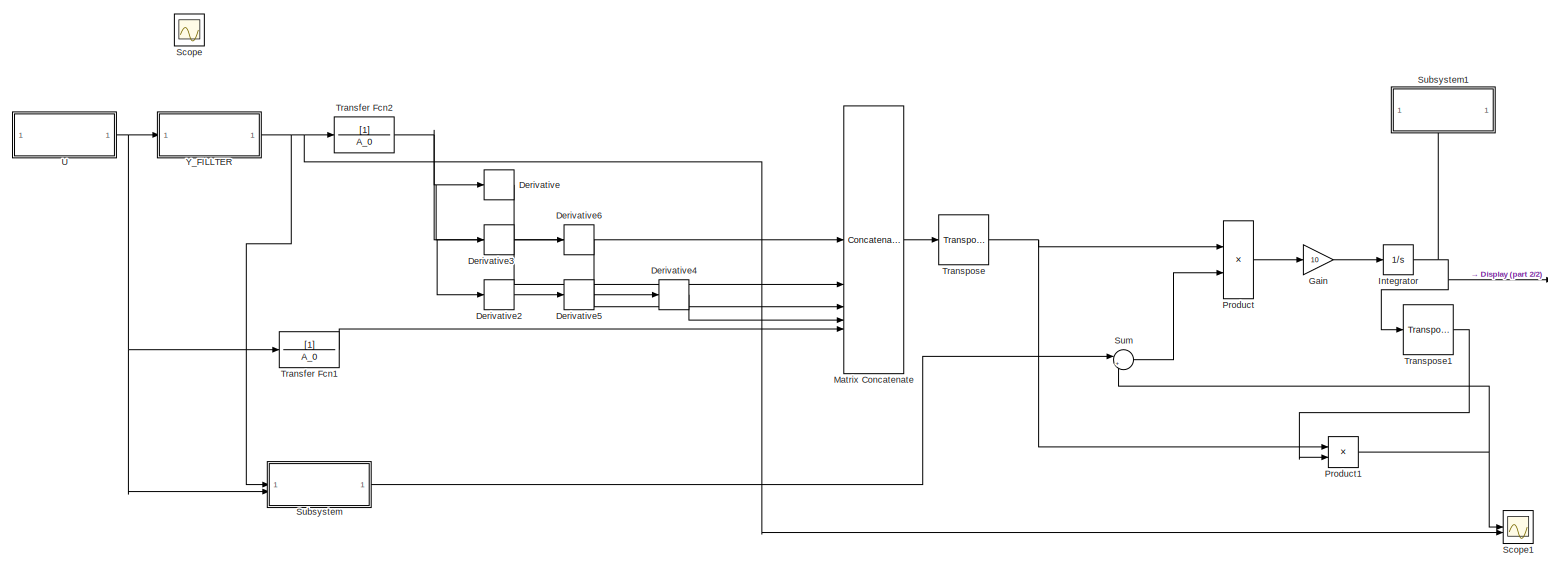
[diagram: root canvas - part 1/2, most of the canvas]
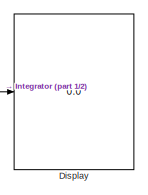
[diagram: root canvas - part 2/2, middle right region]
MODEL slx_9ffe2521eaad
KIND model
CONFIG AbsTol = auto
CONFIG EnableMultiTasking = off
CONFIG FixedStep = 0.1
CONFIG MaxStep = auto
CONFIG MinStep = auto
CONFIG RelTol = 1e-3
CONFIG SampleTimeConstraint = Unconstrained
CONFIG SolverName = FixedStepAuto
CONFIG StartTime = 0.0
CONFIG StopTime = 70000
BLOCK [Derivative] Derivative
BLOCK [Derivative] Derivative2
BLOCK [Derivative] Derivative3
BLOCK [Derivative] Derivative4
BLOCK [Derivative] Derivative5
BLOCK [Derivative] Derivative6
BLOCK [Display] Display
  Decimation = 1
BLOCK [Gain] Gain
  Gain = 10
BLOCK [Integrator] Integrator
BLOCK [Concatenate] Matrix Concatenate
  Mode = Multidimensional array
  NumInputs = 5
BLOCK [Product] Product
BLOCK [Product] Product1
  Multiplication = Matrix(*)
BLOCK [Scope] Scope
  Floating = off
  IOType = viewer
  NumInputPorts = 1
  ScopeSpecificationString = Simulink.scopes.TimeScopeBlockCfg('CurrentConfiguration', extmgr.ConfigurationSet(extmgr.Configuration('Core','General UI',true),extmgr.Configuration('Core','Source UI',true),extmgr.Configuration('Sources','WiredSimulink',true),extmgr.Configuration('Visuals','Time Domain',true,'SerializedDisplays',{struct('MinYLimReal','-3.20132','MaxYLimReal','3.20132','YLabelReal','','MinYLimMag','0.00000','MaxY...<+1324ch>
BLOCK [Scope] Scope1
  Floating = off
  NumInputPorts = 2
  ScopeSpecificationString = Simulink.scopes.TimeScopeBlockCfg('CurrentConfiguration', extmgr.ConfigurationSet(extmgr.Configuration('Core','General UI',true),extmgr.Configuration('Core','Source UI',true),extmgr.Configuration('Sources','WiredSimulink',true,'DataLoggingVariableName','ScopeData2'),extmgr.Configuration('Visuals','Time Domain',true,'SerializedDisplays',{struct('MinYLimReal','-0.02475','MaxYLimReal','0.09519','YLab...<+1449ch>
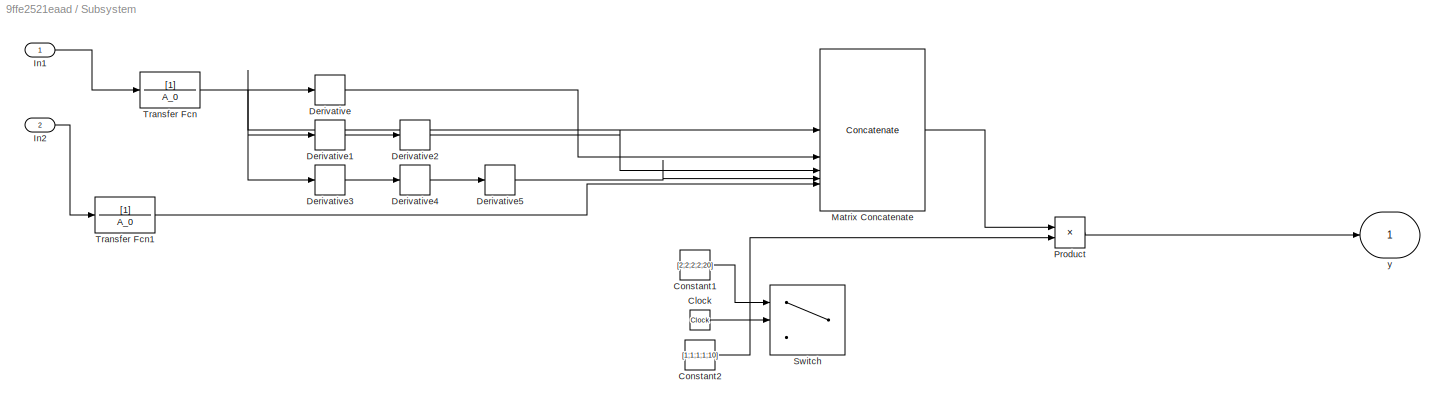
BLOCK [SubSystem] Subsystem
BLOCK [Clock] Subsystem/Clock
BLOCK [Constant] Subsystem/Constant1
  Value = [2;2;2;2;20]
BLOCK [Constant] Subsystem/Constant2
  Value = [1;1;1;1;10]
BLOCK [Derivative] Subsystem/Derivative
BLOCK [Derivative] Subsystem/Derivative1
BLOCK [Derivative] Subsystem/Derivative2
BLOCK [Derivative] Subsystem/Derivative3
BLOCK [Derivative] Subsystem/Derivative4
BLOCK [Derivative] Subsystem/Derivative5
BLOCK [Inport] Subsystem/In1
BLOCK [Inport] Subsystem/In2
  Port = 2
BLOCK [Concatenate] Subsystem/Matrix Concatenate
  ConcatenateDimension = 2
  Mode = Multidimensional array
  NumInputs = 5
BLOCK [Product] Subsystem/Product
  Multiplication = Matrix(*)
BLOCK [Switch] Subsystem/Switch
  Criteria = u2 > Threshold
  InputSameDT = off
  SaturateOnIntegerOverflow = off
  Threshold = 200000
BLOCK [TransferFcn] Subsystem/Transfer Fcn
  Denominator = A_0
BLOCK [TransferFcn] Subsystem/Transfer Fcn1
  Denominator = A_0
BLOCK [Outport] Subsystem/y
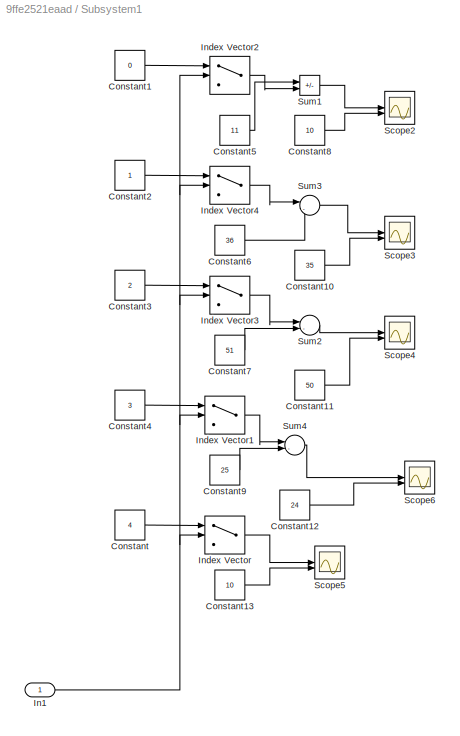
BLOCK [SubSystem] Subsystem1
  PortSchema = {"entries":[{"content":{"sides":[{"content":{"connectorIds":[]},"type":"ConnectorPlacement.EquallySpacedRectSide","uuid":"52b6fdf9-1802-49ef-85fd-54fc755b953c"},{"content":{"connectorIds":[],"side":"RIGHT"},"type":"ConnectorPlacement.EquallySpacedRectSide","uuid":"96d61da8-85e0-4c2c-a1b4-af071e987e17"},{"content":{"connectorIds":[],"side":"TOP"},"type":"ConnectorPlacement.EquallySpacedRectSide","u...<+378ch>
BLOCK [Constant] Subsystem1/Constant
  Value = 4
BLOCK [Constant] Subsystem1/Constant1
  Value = 0
BLOCK [Constant] Subsystem1/Constant10
  Value = 35
BLOCK [Constant] Subsystem1/Constant11
  Value = 50
BLOCK [Constant] Subsystem1/Constant12
  Value = 24
BLOCK [Constant] Subsystem1/Constant13
  Value = 10
BLOCK [Constant] Subsystem1/Constant2
BLOCK [Constant] Subsystem1/Constant3
  Value = 2
BLOCK [Constant] Subsystem1/Constant4
  Value = 3
BLOCK [Constant] Subsystem1/Constant5
  Value = 11
BLOCK [Constant] Subsystem1/Constant6
  Value = 36
BLOCK [Constant] Subsystem1/Constant7
  Value = 51
BLOCK [Constant] Subsystem1/Constant8
  Value = 10
BLOCK [Constant] Subsystem1/Constant9
  Value = 25
BLOCK [Inport] Subsystem1/In1
BLOCK [MultiPortSwitch] Subsystem1/Index Vector
  DataPortOrder = Zero-based contiguous
  InputSameDT = off
  Inputs = 1
  SaturateOnIntegerOverflow = off
  zeroidx = on
BLOCK [MultiPortSwitch] Subsystem1/Index Vector1
  DataPortOrder = Zero-based contiguous
  InputSameDT = off
  Inputs = 1
  SaturateOnIntegerOverflow = off
  zeroidx = on
BLOCK [MultiPortSwitch] Subsystem1/Index Vector2
  DataPortOrder = Zero-based contiguous
  InputSameDT = off
  Inputs = 1
  SaturateOnIntegerOverflow = off
  zeroidx = on
BLOCK [MultiPortSwitch] Subsystem1/Index Vector3
  DataPortOrder = Zero-based contiguous
  InputSameDT = off
  Inputs = 1
  SaturateOnIntegerOverflow = off
  zeroidx = on
BLOCK [MultiPortSwitch] Subsystem1/Index Vector4
  DataPortOrder = Zero-based contiguous
  InputSameDT = off
  Inputs = 1
  SaturateOnIntegerOverflow = off
  zeroidx = on
BLOCK [Scope] Subsystem1/Scope2
  Floating = off
  NumInputPorts = 2
  ScopeSpecificationString = Simulink.scopes.TimeScopeBlockCfg('CurrentConfiguration', extmgr.ConfigurationSet(extmgr.Configuration('Core','General UI',true,'FigureColor',[1 1 1]),extmgr.Configuration('Core','Source UI',true),extmgr.Configuration('Sources','WiredSimulink',true,'DataLoggingVariableName','ScopeData3'),extmgr.Configuration('Visuals','Time Domain',true,'SerializedDisplays',{struct('MinYLimReal','9.84145','MaxYLim...<+1769ch>
BLOCK [Scope] Subsystem1/Scope3
  Floating = off
  NumInputPorts = 2
  ScopeSpecificationString = Simulink.scopes.TimeScopeBlockCfg('CurrentConfiguration', extmgr.ConfigurationSet(extmgr.Configuration('Core','General UI',true,'FigureColor',[1 1 1]),extmgr.Configuration('Core','Source UI',true),extmgr.Configuration('Sources','WiredSimulink',true,'DataLoggingVariableName','ScopeData4'),extmgr.Configuration('Visuals','Time Domain',true,'SerializedDisplays',{struct('MinYLimReal','34.04057','MaxYLi...<+1774ch>
BLOCK [Scope] Subsystem1/Scope4
  Floating = off
  NumInputPorts = 2
  ScopeSpecificationString = Simulink.scopes.TimeScopeBlockCfg('CurrentConfiguration', extmgr.ConfigurationSet(extmgr.Configuration('Core','General UI',true,'FigureColor',[1 1 1]),extmgr.Configuration('Core','Source UI',true),extmgr.Configuration('Sources','WiredSimulink',true,'DataLoggingVariableName','ScopeData5'),extmgr.Configuration('Visuals','Time Domain',true,'SerializedDisplays',{struct('MinYLimReal','49.78186','MaxYLi...<+1774ch>
BLOCK [Scope] Subsystem1/Scope5
  Floating = off
  NumInputPorts = 2
  ScopeSpecificationString = Simulink.scopes.TimeScopeBlockCfg('CurrentConfiguration', extmgr.ConfigurationSet(extmgr.Configuration('Core','General UI',true,'FigureColor',[1 1 1]),extmgr.Configuration('Core','Source UI',true),extmgr.Configuration('Sources','WiredSimulink',true,'DataLoggingVariableName','ScopeData6'),extmgr.Configuration('Visuals','Time Domain',true,'SerializedDisplays',{struct('MinYLimReal','-1.25001','MaxYLi...<+1813ch>
BLOCK [Scope] Subsystem1/Scope6
  Floating = off
  NumInputPorts = 2
  ScopeSpecificationString = Simulink.scopes.TimeScopeBlockCfg('CurrentConfiguration', extmgr.ConfigurationSet(extmgr.Configuration('Core','General UI',true,'FigureColor',[1 1 1]),extmgr.Configuration('Core','Source UI',true),extmgr.Configuration('Sources','WiredSimulink',true,'DataLoggingVariableName','ScopeData7'),extmgr.Configuration('Visuals','Time Domain',true,'SerializedDisplays',{struct('MinYLimReal','23.74574','MaxYLi...<+1804ch>
BLOCK [Sum] Subsystem1/Sum1
  IconShape = rectangular
  Inputs = |+-
BLOCK [Sum] Subsystem1/Sum2
  Inputs = |-+
BLOCK [Sum] Subsystem1/Sum3
  Inputs = |-+
BLOCK [Sum] Subsystem1/Sum4
  Inputs = |-+
BLOCK [Sum] Sum
  Inputs = |+-
BLOCK [TransferFcn] Transfer Fcn1
  Denominator = A_0
BLOCK [TransferFcn] Transfer Fcn2
  Denominator = A_0
BLOCK [Reference] Transpose  REF=matrix_library/Transpose
  LibrarySourceBlock = simulink/Matrix\nOperations/Transpose
  SourceBlock = matrix_library/Transpose
  SourceType = Transpose
BLOCK [Reference] Transpose1  REF=matrix_library/Transpose
  LibrarySourceBlock = simulink/Matrix\nOperations/Transpose
  SourceBlock = matrix_library/Transpose
  SourceType = Transpose
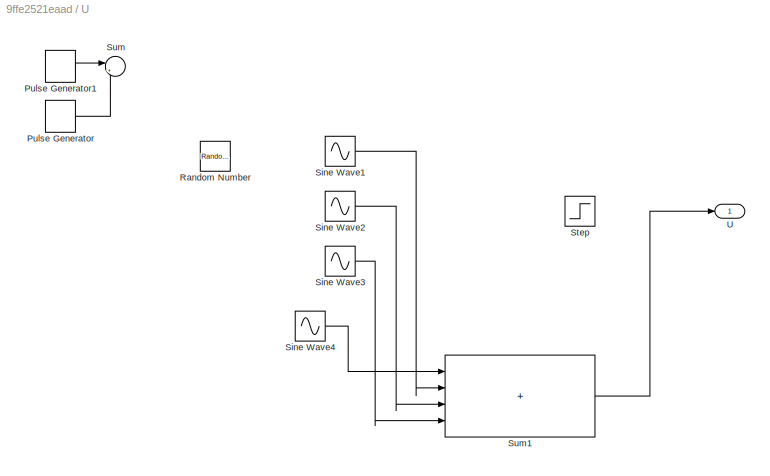
BLOCK [SubSystem] U
BLOCK [DiscretePulseGenerator] U/Pulse Generator
  Amplitude = -1
  Period = 20
  PulseType = Time based
  PulseWidth = 50
BLOCK [DiscretePulseGenerator] U/Pulse Generator1
  Period = 20
  PulseType = Time based
  PulseWidth = 50
BLOCK [RandomNumber] U/Random Number
  SampleTime = 0.1
BLOCK [Sin] U/Sine Wave1
  Frequency = 5
  SampleTime = 0
BLOCK [Sin] U/Sine Wave2
  Frequency = 2
  SampleTime = 0
BLOCK [Sin] U/Sine Wave3
  Frequency = 3
  SampleTime = 0
BLOCK [Sin] U/Sine Wave4
  SampleTime = 0
BLOCK [Step] U/Step
  SampleTime = 0
BLOCK [Sum] U/Sum
  Inputs = |++
BLOCK [Sum] U/Sum1
  IconShape = rectangular
  Inputs = +|+++
BLOCK [Outport] U/U
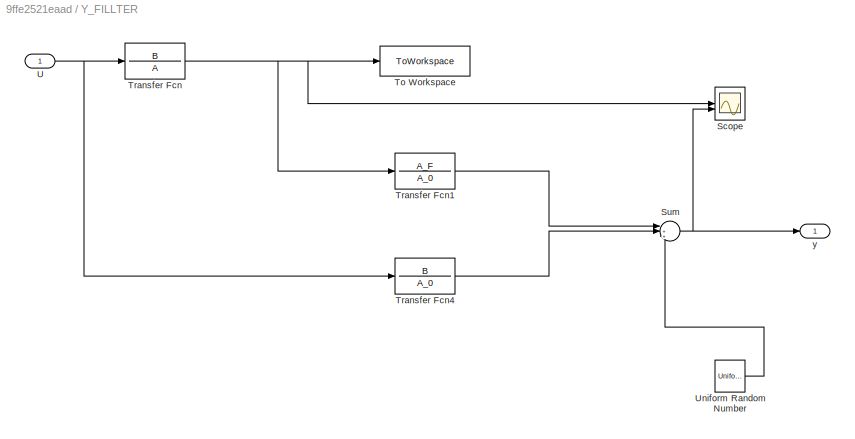
BLOCK [SubSystem] Y_FILLTER
BLOCK [Scope] Y_FILLTER/Scope
  Floating = off
  NumInputPorts = 2
  ScopeSpecificationString = Simulink.scopes.TimeScopeBlockCfg('CurrentConfiguration', extmgr.ConfigurationSet(extmgr.Configuration('Core','General UI',true),extmgr.Configuration('Core','Source UI',true),extmgr.Configuration('Sources','WiredSimulink',true,'DataLoggingVariableName','ScopeData1'),extmgr.Configuration('Visuals','Time Domain',true,'SerializedDisplays',{struct('MinYLimReal','-0.02475','MaxYLimReal','0.09519','YLab...<+1448ch>
BLOCK [Sum] Y_FILLTER/Sum
  Inputs = |+++
BLOCK [ToWorkspace] Y_FILLTER/To Workspace
  FixptAsFi = on
  MaxDataPoints = inf
  SampleTime = -1
  SaveFormat = Timeseries
  VariableName = Y
BLOCK [TransferFcn] Y_FILLTER/Transfer Fcn
  Denominator = A
  Numerator = B
BLOCK [TransferFcn] Y_FILLTER/Transfer Fcn1
  Denominator = A_0
  Numerator = A_F
BLOCK [TransferFcn] Y_FILLTER/Transfer Fcn4
  Denominator = A_0
  Numerator = B
BLOCK [Inport] Y_FILLTER/U
BLOCK [UniformRandomNumber] Y_FILLTER/Uniform Random Number
  SampleTime = 0.1
BLOCK [Outport] Y_FILLTER/y
LINE Derivative2:1 -> Derivative5:1
LINE Derivative3:1 -> Derivative6:1
LINE Derivative4:1 -> Matrix Concatenate:4
LINE Derivative5:1 -> Derivative4:1
LINE Derivative6:1 -> Matrix Concatenate:3
LINE Derivative:1 -> Matrix Concatenate:2
LINE Gain:1 -> Integrator:1
NET Integrator:1 -> Display:1, Subsystem1:1, Transpose1:1
LINE Matrix Concatenate:1 -> Transpose:1
NET Product1:1 -> Scope1:1, Sum:2
LINE Product:1 -> Gain:1
LINE Subsystem/Clock:1 -> Subsystem/Switch:2
LINE Subsystem/Constant1:1 -> Subsystem/Switch:1
LINE Subsystem/Constant2:1 -> Subsystem/Product:2
LINE Subsystem/Derivative1:1 -> Subsystem/Derivative2:1
LINE Subsystem/Derivative2:1 -> Subsystem/Matrix Concatenate:3
LINE Subsystem/Derivative3:1 -> Subsystem/Derivative4:1
LINE Subsystem/Derivative4:1 -> Subsystem/Derivative5:1
LINE Subsystem/Derivative5:1 -> Subsystem/Matrix Concatenate:4
LINE Subsystem/Derivative:1 -> Subsystem/Matrix Concatenate:2
LINE Subsystem/In1:1 -> Subsystem/Transfer Fcn:1
LINE Subsystem/In2:1 -> Subsystem/Transfer Fcn1:1
LINE Subsystem/Matrix Concatenate:1 -> Subsystem/Product:1
LINE Subsystem/Product:1 -> Subsystem/y:1
LINE Subsystem/Transfer Fcn1:1 -> Subsystem/Matrix Concatenate:5
NET Subsystem/Transfer Fcn:1 -> Subsystem/Derivative1:1, Subsystem/Derivative3:1, Subsystem/Derivative:1, Subsystem/Matrix Concatenate:1
LINE Subsystem1/Constant10:1 -> Subsystem1/Scope3:2
LINE Subsystem1/Constant11:1 -> Subsystem1/Scope4:2
LINE Subsystem1/Constant12:1 -> Subsystem1/Scope6:2
LINE Subsystem1/Constant13:1 -> Subsystem1/Scope5:2
LINE Subsystem1/Constant1:1 -> Subsystem1/Index Vector2:1
LINE Subsystem1/Constant2:1 -> Subsystem1/Index Vector4:1
LINE Subsystem1/Constant3:1 -> Subsystem1/Index Vector3:1
LINE Subsystem1/Constant4:1 -> Subsystem1/Index Vector1:1
LINE Subsystem1/Constant5:1 -> Subsystem1/Sum1:1
LINE Subsystem1/Constant6:1 -> Subsystem1/Sum3:2
LINE Subsystem1/Constant7:1 -> Subsystem1/Sum2:2
LINE Subsystem1/Constant8:1 -> Subsystem1/Scope2:2
LINE Subsystem1/Constant9:1 -> Subsystem1/Sum4:2
LINE Subsystem1/Constant:1 -> Subsystem1/Index Vector:1
NET Subsystem1/In1:1 -> Subsystem1/Index Vector1:2, Subsystem1/Index Vector2:2, Subsystem1/Index Vector3:2, Subsystem1/Index Vector4:2, Subsystem1/Index Vector:2
LINE Subsystem1/Index Vector1:1 -> Subsystem1/Sum4:1
LINE Subsystem1/Index Vector2:1 -> Subsystem1/Sum1:2
LINE Subsystem1/Index Vector3:1 -> Subsystem1/Sum2:1
LINE Subsystem1/Index Vector4:1 -> Subsystem1/Sum3:1
LINE Subsystem1/Index Vector:1 -> Subsystem1/Scope5:1
LINE Subsystem1/Sum1:1 -> Subsystem1/Scope2:1
LINE Subsystem1/Sum2:1 -> Subsystem1/Scope4:1
LINE Subsystem1/Sum3:1 -> Subsystem1/Scope3:1
LINE Subsystem1/Sum4:1 -> Subsystem1/Scope6:1
LINE Subsystem:1 -> Sum:1
LINE Sum:1 -> Product:2
LINE Transfer Fcn1:1 -> Matrix Concatenate:5
NET Transfer Fcn2:1 -> Derivative2:1, Derivative3:1, Derivative:1, Matrix Concatenate:1
LINE Transpose1:1 -> Product1:2
NET Transpose:1 -> Product1:1, Product:1
LINE U/Pulse Generator1:1 -> U/Sum:1
LINE U/Pulse Generator:1 -> U/Sum:2
LINE U/Sine Wave1:1 -> U/Sum1:2
LINE U/Sine Wave2:1 -> U/Sum1:3
LINE U/Sine Wave3:1 -> U/Sum1:4
LINE U/Sine Wave4:1 -> U/Sum1:1
LINE U/Sum1:1 -> U/U:1
NET U:1 -> Subsystem:2, Transfer Fcn1:1, Y_FILLTER:1
NET Y_FILLTER/Sum:1 -> Y_FILLTER/Scope:2, Y_FILLTER/y:1
LINE Y_FILLTER/Transfer Fcn1:1 -> Y_FILLTER/Sum:1
LINE Y_FILLTER/Transfer Fcn4:1 -> Y_FILLTER/Sum:2
NET Y_FILLTER/Transfer Fcn:1 -> Y_FILLTER/Scope:1, Y_FILLTER/To Workspace:1, Y_FILLTER/Transfer Fcn1:1
NET Y_FILLTER/U:1 -> Y_FILLTER/Transfer Fcn4:1, Y_FILLTER/Transfer Fcn:1
LINE Y_FILLTER/Uniform Random Number:1 -> Y_FILLTER/Sum:3
NET Y_FILLTER:1 -> Scope1:2, Subsystem:1, Transfer Fcn2:1
note: NET lines group one-source signal fan-out (src -> all destinations, sorted); 1:1 wires keep LINE
